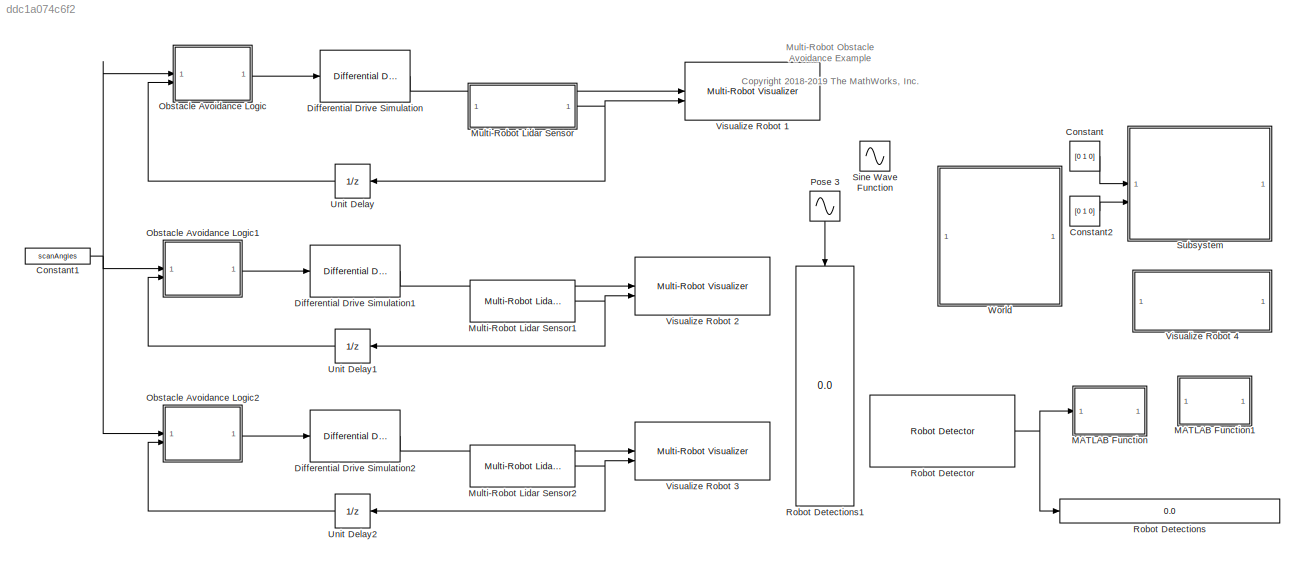
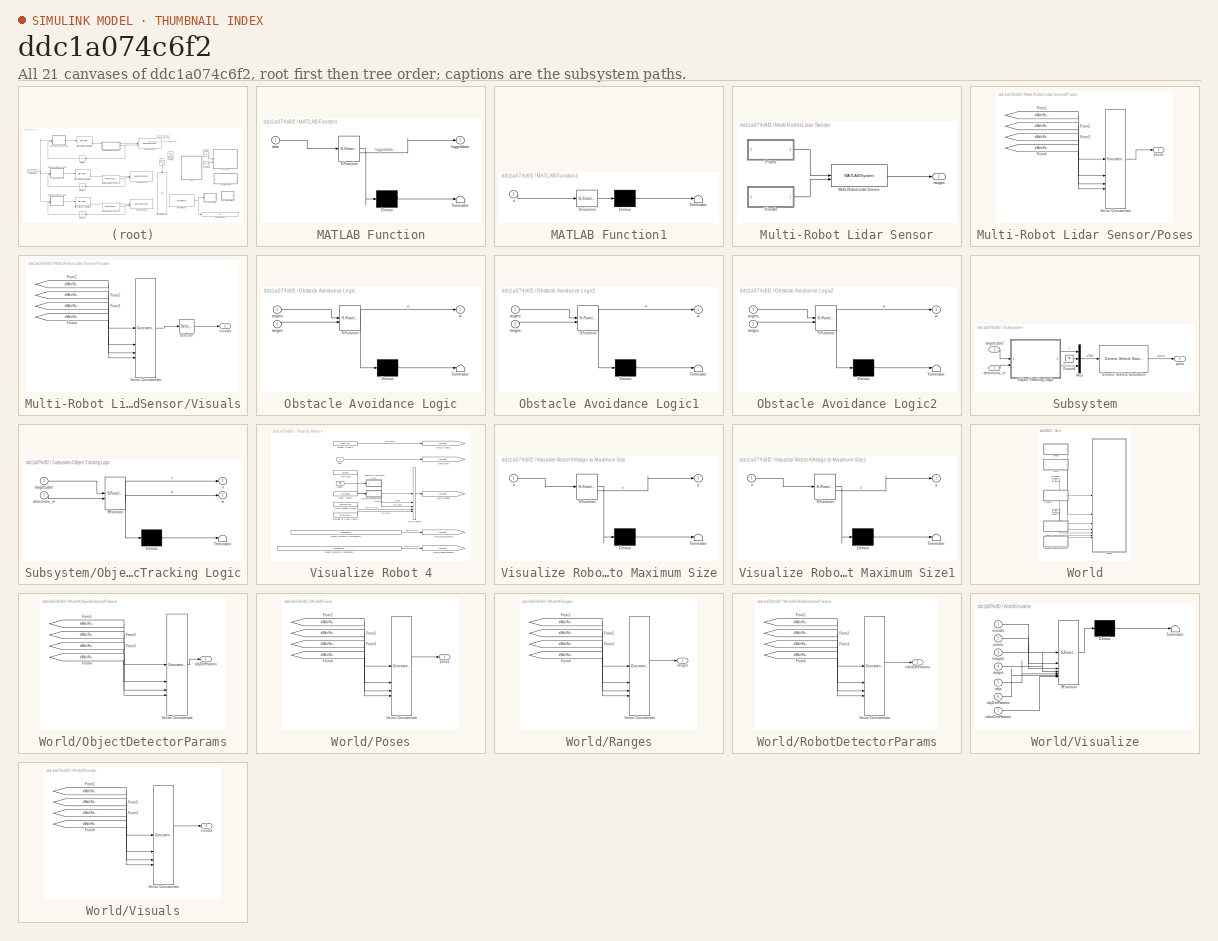
[diagram: thumbnail index - all 21 canvases of the model, root first then tree order]
MODEL slx_ddc1a074c6f2
KIND model
CONFIG AbsTol = auto
CONFIG EnableMultiTasking = off
CONFIG FixedStep = sampleTime
CONFIG MaxStep = auto
CONFIG MinStep = auto
CONFIG PreLoadFcn = % Simulation parameters\nload exampleMap\nsampleTime = 0.05;\n\n% Robot parameters\nwheelRadius = 0.025;\nrobotRadius = 0.35;\n\n% Lidar parameters\nsensorOffset = [0,0];\nscanAngles = linspace(-pi/2,pi/2,9)';\nmaxRange = 5;
CONFIG RelTol = 1e-3
CONFIG SampleTimeConstraint = Unconstrained
CONFIG SolverName = FixedStepAuto
CONFIG StartTime = 0.0
CONFIG StopTime = inf
BLOCK [Constant] Constant
  Commented = on
  Value = [0 1 0]
BLOCK [Constant] Constant1
  Value = scanAngles
BLOCK [Constant] Constant2
  Commented = on
  Value = [0 1 0]
BLOCK [Reference] Differential Drive Simulation  REF=mobileRoboticsLib/Kinematic Models/Differential Drive/Differential Drive Simulation
  SourceBlock = mobileRoboticsLib/Kinematic Models/Differential Drive/Differential Drive Simulation
  SourceProductName = Mobile Robotics Simulation Toolbox
  SourceType = Differential Drive Simulation
BLOCK [Reference] Differential Drive Simulation1  REF=mobileRoboticsLib/Kinematic Models/Differential Drive/Differential Drive Simulation
  SourceBlock = mobileRoboticsLib/Kinematic Models/Differential Drive/Differential Drive Simulation
  SourceProductName = Mobile Robotics Simulation Toolbox
  SourceType = Differential Drive Simulation
BLOCK [Reference] Differential Drive Simulation2  REF=mobileRoboticsLib/Kinematic Models/Differential Drive/Differential Drive Simulation
  SourceBlock = mobileRoboticsLib/Kinematic Models/Differential Drive/Differential Drive Simulation
  SourceProductName = Mobile Robotics Simulation Toolbox
  SourceType = Differential Drive Simulation
BLOCK [SubSystem] MATLAB Function
  ErrorFcn = Stateflow.Translate.translate
  PermitHierarchicalResolution = ExplicitOnly
  SFBlockType = MATLAB Function
  TreatAsAtomicUnit = on
BLOCK [Demux] MATLAB Function/ Demux 
  Outputs = 1
BLOCK [S-Function] MATLAB Function/ SFunction 
  EnableBusSupport = on
  FunctionName = sf_sfun
  PortCounts = [1 2]
  SFcnIsStateOwnerBlock = off
  SFunctionDeploymentMode = off
  Tag = Stateflow S-Function 4
BLOCK [Terminator] MATLAB Function/ Terminator 
BLOCK [Inport] MATLAB Function/data
BLOCK [Outport] MATLAB Function/loggeddata
BLOCK [SubSystem] MATLAB Function1
  ErrorFcn = Stateflow.Translate.translate
  PermitHierarchicalResolution = ExplicitOnly
  SFBlockType = MATLAB Function
  TreatAsAtomicUnit = on
BLOCK [Demux] MATLAB Function1/ Demux 
  Outputs = 1
BLOCK [S-Function] MATLAB Function1/ SFunction 
  EnableBusSupport = off
  FunctionName = sf_sfun
  PortCounts = [1 1]
  SFcnIsStateOwnerBlock = off
  SFunctionDeploymentMode = off
  Tag = Stateflow S-Function 5
BLOCK [Terminator] MATLAB Function1/ Terminator 
BLOCK [Inport] MATLAB Function1/u
BLOCK [SubSystem] Multi-Robot Lidar Sensor
  AncestorBlock = mobileRoboticsLib/Environments/Multi-Robot Lidar Sensor
BLOCK [MATLABSystem] Multi-Robot Lidar Sensor/Multi-Robot Lidar Sensor
  MaskDisplay = disp(['Multi-Robot' char(10) 'Lidar 1']);\nport_label('output',1,'ranges');
  MaskType = MultiRobotLidarSensor
  System = MultiRobotLidarSensor
  mapName = map
  maxRange = maxRange
  robotIdx = robotIdx
  robotRadii = -1
  scanAngles = scanAngles
  sensorOffset = sensorOffset
BLOCK [SubSystem] Multi-Robot Lidar Sensor/Poses
BLOCK [From] Multi-Robot Lidar Sensor/Poses/From1
  GotoTag = slMultiRobotEnv_Pose_1
  TagVisibility = global
BLOCK [From] Multi-Robot Lidar Sensor/Poses/From2
  GotoTag = slMultiRobotEnv_Pose_2
  TagVisibility = global
BLOCK [From] Multi-Robot Lidar Sensor/Poses/From3
  GotoTag = slMultiRobotEnv_Pose_3
  TagVisibility = global
BLOCK [From] Multi-Robot Lidar Sensor/Poses/From4
  GotoTag = slMultiRobotEnv_Pose_4
  TagVisibility = global
BLOCK [Concatenate] Multi-Robot Lidar Sensor/Poses/Vector Concatenate
  ConcatenateDimension = 2
  Mode = Multidimensional array
  NumInputs = 4
BLOCK [Outport] Multi-Robot Lidar Sensor/Poses/poses
BLOCK [SubSystem] Multi-Robot Lidar Sensor/Visuals
BLOCK [From] Multi-Robot Lidar Sensor/Visuals/From1
  GotoTag = slMultiRobotEnv_Visuals_1
  TagVisibility = global
BLOCK [From] Multi-Robot Lidar Sensor/Visuals/From2
  GotoTag = slMultiRobotEnv_Visuals_2
  TagVisibility = global
BLOCK [From] Multi-Robot Lidar Sensor/Visuals/From3
  GotoTag = slMultiRobotEnv_Visuals_3
  TagVisibility = global
BLOCK [From] Multi-Robot Lidar Sensor/Visuals/From4
  GotoTag = slMultiRobotEnv_Visuals_4
  TagVisibility = global
BLOCK [Selector] Multi-Robot Lidar Sensor/Visuals/Selector
  IndexOptions = Index vector (dialog),Select all
  Indices = 1,1
  InputPortWidth = 3
  NumberOfDimensions = 2
  OutputSizes = 1,1
BLOCK [Concatenate] Multi-Robot Lidar Sensor/Visuals/Vector Concatenate
  ConcatenateDimension = 2
  Mode = Multidimensional array
  NumInputs = 4
BLOCK [Outport] Multi-Robot Lidar Sensor/Visuals/visuals
BLOCK [Outport] Multi-Robot Lidar Sensor/ranges
  VectorParamsAs1DForOutWhenUnconnected = off
BLOCK [Reference] Multi-Robot Lidar Sensor1  REF=mobileRoboticsLib/Environments/Multi-Robot Lidar Sensor
  SourceBlock = mobileRoboticsLib/Environments/Multi-Robot Lidar Sensor
  SourceProductName = Mobile Robotics Simulation Toolbox
  SourceType = Multi-Robot Lidar Sensor
BLOCK [Reference] Multi-Robot Lidar Sensor2  REF=mobileRoboticsLib/Environments/Multi-Robot Lidar Sensor
  SourceBlock = mobileRoboticsLib/Environments/Multi-Robot Lidar Sensor
  SourceProductName = Mobile Robotics Simulation Toolbox
  SourceType = Multi-Robot Lidar Sensor
BLOCK [SubSystem] Obstacle Avoidance Logic
  ErrorFcn = Stateflow.Translate.translate
  PermitHierarchicalResolution = ExplicitOnly
  SFBlockType = Chart
  TreatAsAtomicUnit = on
BLOCK [Demux] Obstacle Avoidance Logic/ Demux 
  Outputs = 1
BLOCK [S-Function] Obstacle Avoidance Logic/ SFunction 
  EnableBusSupport = on
  FunctionName = sf_sfun
  PortCounts = [2 2]
  SFcnIsStateOwnerBlock = off
  SFunctionDeploymentMode = off
  Tag = Stateflow S-Function 3
BLOCK [Terminator] Obstacle Avoidance Logic/ Terminator 
BLOCK [Inport] Obstacle Avoidance Logic/angles
BLOCK [Inport] Obstacle Avoidance Logic/ranges
  Port = 2
BLOCK [Outport] Obstacle Avoidance Logic/w
  VectorParamsAs1DForOutWhenUnconnected = off
BLOCK [SubSystem] Obstacle Avoidance Logic1
  ErrorFcn = Stateflow.Translate.translate
  PermitHierarchicalResolution = ExplicitOnly
  SFBlockType = Chart
  TreatAsAtomicUnit = on
BLOCK [Demux] Obstacle Avoidance Logic1/ Demux 
  Outputs = 1
BLOCK [S-Function] Obstacle Avoidance Logic1/ SFunction 
  EnableBusSupport = on
  FunctionName = sf_sfun
  PortCounts = [2 2]
  SFcnIsStateOwnerBlock = off
  SFunctionDeploymentMode = off
  Tag = Stateflow S-Function 1
BLOCK [Terminator] Obstacle Avoidance Logic1/ Terminator 
BLOCK [Inport] Obstacle Avoidance Logic1/angles
BLOCK [Inport] Obstacle Avoidance Logic1/ranges
  Port = 2
BLOCK [Outport] Obstacle Avoidance Logic1/w
  VectorParamsAs1DForOutWhenUnconnected = off
BLOCK [SubSystem] Obstacle Avoidance Logic2
  ErrorFcn = Stateflow.Translate.translate
  PermitHierarchicalResolution = ExplicitOnly
  SFBlockType = Chart
  TreatAsAtomicUnit = on
BLOCK [Demux] Obstacle Avoidance Logic2/ Demux 
  Outputs = 1
BLOCK [S-Function] Obstacle Avoidance Logic2/ SFunction 
  EnableBusSupport = on
  FunctionName = sf_sfun
  PortCounts = [2 2]
  SFcnIsStateOwnerBlock = off
  SFunctionDeploymentMode = off
  Tag = Stateflow S-Function 2
BLOCK [Terminator] Obstacle Avoidance Logic2/ Terminator 
BLOCK [Inport] Obstacle Avoidance Logic2/angles
BLOCK [Inport] Obstacle Avoidance Logic2/ranges
  Port = 2
BLOCK [Outport] Obstacle Avoidance Logic2/w
  VectorParamsAs1DForOutWhenUnconnected = off
BLOCK [Sin] Pose 3
  Amplitude = [-2;0.5;pi/2]
  Bias = [7.75;3;0]
  NameLocation = left
  Offset = [0;50;25]
  Phase = [-pi/4;0;pi/3]
  SampleTime = sampleTime
  Samples = 160
  SineType = Sample based
BLOCK [Display] Robot Detections
  Decimation = 1
BLOCK [Display] Robot Detections1
  Decimation = 1
  NameLocation = left
BLOCK [Reference] Robot Detector  REF=mobileRoboticsLib/Environments/Robot Detector
  SourceBlock = mobileRoboticsLib/Environments/Robot Detector
  SourceProductName = Mobile Robotics Simulation Toolbox
  SourceType = Robot Detector
BLOCK [Sin] Sine Wave Function
  Amplitude = [detect_array(1);detect_array(2);detect_array(3)]
  Bias = [7.75;3;0]
  Commented = on
  Offset = [0;50;25]
  SampleTime = 0.05
  Samples = 160
  SineType = Sample based
BLOCK [SubSystem] Subsystem
  Commented = on
BLOCK [Reference] Subsystem/Generic Vehicle Simulation  REF=mobileRoboticsLib/Utilities/Generic Vehicle Simulation
  SourceBlock = mobileRoboticsLib/Utilities/Generic Vehicle Simulation
  SourceProductName = Mobile Robotics Simulation Toolbox
  SourceType = Generic Vehicle Simulation
BLOCK [Ground] Subsystem/Ground
BLOCK [Mux] Subsystem/Mux
  DisplayOption = bar
  Inputs = 3
BLOCK [SubSystem] Subsystem/Object Tracking Logic
  ErrorFcn = Stateflow.Translate.translate
  PermitHierarchicalResolution = ExplicitOnly
  SFBlockType = Chart
  TreatAsAtomicUnit = on
BLOCK [Demux] Subsystem/Object Tracking Logic/ Demux 
  Outputs = 1
BLOCK [S-Function] Subsystem/Object Tracking Logic/ SFunction 
  EnableBusSupport = on
  FunctionName = sf_sfun
  PortCounts = [2 3]
  SFcnIsStateOwnerBlock = off
  SFunctionDeploymentMode = off
  Tag = Stateflow S-Function 6
BLOCK [Terminator] Subsystem/Object Tracking Logic/ Terminator 
BLOCK [Inport] Subsystem/Object Tracking Logic/detections_in
  Port = 2
BLOCK [Inport] Subsystem/Object Tracking Logic/targetLabel
BLOCK [Outport] Subsystem/Object Tracking Logic/v
  VectorParamsAs1DForOutWhenUnconnected = off
BLOCK [Outport] Subsystem/Object Tracking Logic/w
  Port = 2
  VectorParamsAs1DForOutWhenUnconnected = off
BLOCK [Inport] Subsystem/detections_in
  Port = 2
BLOCK [Outport] Subsystem/pose
BLOCK [Inport] Subsystem/targetLabel
BLOCK [UnitDelay] Unit Delay
  HasFrameUpgradeWarning = on
  SampleTime = -1
BLOCK [UnitDelay] Unit Delay1
  HasFrameUpgradeWarning = on
  SampleTime = -1
BLOCK [UnitDelay] Unit Delay2
  HasFrameUpgradeWarning = on
  SampleTime = -1
BLOCK [Reference] Visualize Robot 1  REF=mobileRoboticsLib/Environments/Multi-Robot Visualizer
  SourceBlock = mobileRoboticsLib/Environments/Multi-Robot Visualizer
  SourceProductName = Mobile Robotics Simulation Toolbox
  SourceType = Multi-Robot Visualizer
BLOCK [Reference] Visualize Robot 2  REF=mobileRoboticsLib/Environments/Multi-Robot Visualizer
  SourceBlock = mobileRoboticsLib/Environments/Multi-Robot Visualizer
  SourceProductName = Mobile Robotics Simulation Toolbox
  SourceType = Multi-Robot Visualizer
BLOCK [Reference] Visualize Robot 3  REF=mobileRoboticsLib/Environments/Multi-Robot Visualizer
  SourceBlock = mobileRoboticsLib/Environments/Multi-Robot Visualizer
  SourceProductName = Mobile Robotics Simulation Toolbox
  SourceType = Multi-Robot Visualizer
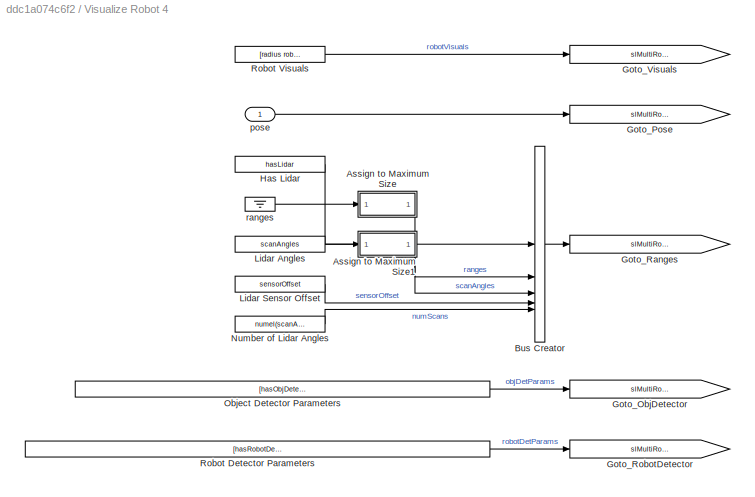
BLOCK [SubSystem] Visualize Robot 4
  AncestorBlock = mobileRoboticsLib/Environments/Multi-Robot Visualizer
BLOCK [SubSystem] Visualize Robot 4/Assign to Maximum Size
  ErrorFcn = Stateflow.Translate.translate
  PermitHierarchicalResolution = ExplicitOnly
  SFBlockType = MATLAB Function
  TreatAsAtomicUnit = on
BLOCK [Demux] Visualize Robot 4/Assign to Maximum Size/ Demux 
  Outputs = 1
BLOCK [S-Function] Visualize Robot 4/Assign to Maximum Size/ SFunction 
  EnableBusSupport = on
  FunctionName = sf_sfun
  Parameters = maxLength
  PortCounts = [1 2]
  SFcnIsStateOwnerBlock = off
  SFunctionDeploymentMode = off
  Tag = Stateflow S-Function 15
BLOCK [Terminator] Visualize Robot 4/Assign to Maximum Size/ Terminator 
BLOCK [Inport] Visualize Robot 4/Assign to Maximum Size/u
BLOCK [Outport] Visualize Robot 4/Assign to Maximum Size/y
BLOCK [SubSystem] Visualize Robot 4/Assign to Maximum Size1
  ErrorFcn = Stateflow.Translate.translate
  PermitHierarchicalResolution = ExplicitOnly
  SFBlockType = MATLAB Function
  TreatAsAtomicUnit = on
BLOCK [Demux] Visualize Robot 4/Assign to Maximum Size1/ Demux 
  Outputs = 1
BLOCK [S-Function] Visualize Robot 4/Assign to Maximum Size1/ SFunction 
  EnableBusSupport = on
  FunctionName = sf_sfun
  Parameters = maxLength
  PortCounts = [1 2]
  SFcnIsStateOwnerBlock = off
  SFunctionDeploymentMode = off
  Tag = Stateflow S-Function 16
BLOCK [Terminator] Visualize Robot 4/Assign to Maximum Size1/ Terminator 
BLOCK [Inport] Visualize Robot 4/Assign to Maximum Size1/u
BLOCK [Outport] Visualize Robot 4/Assign to Maximum Size1/y
BLOCK [BusCreator] Visualize Robot 4/Bus Creator
  DisplayOption = bar
  InheritFromInputs = off
  Inputs = 5
  NonVirtualBus = on
  OutDataTypeStr = Bus: slbus_MultiRobotRangeSensor
BLOCK [Goto] Visualize Robot 4/Goto_ObjDetector
  Commented = on
  GotoTag = slMultiRobotEnv_ObjDet_4
  TagVisibility = global
BLOCK [Goto] Visualize Robot 4/Goto_Pose
  GotoTag = slMultiRobotEnv_Pose_4
  TagVisibility = global
BLOCK [Goto] Visualize Robot 4/Goto_Ranges
  GotoTag = slMultiRobotEnv_Ranges_4
  TagVisibility = global
BLOCK [Goto] Visualize Robot 4/Goto_RobotDetector
  GotoTag = slMultiRobotEnv_RobotDet_4
  TagVisibility = global
BLOCK [Goto] Visualize Robot 4/Goto_Visuals
  GotoTag = slMultiRobotEnv_Visuals_4
  TagVisibility = global
BLOCK [Constant] Visualize Robot 4/Has Lidar
  OutDataTypeStr = boolean
  Value = hasLidar
BLOCK [Constant] Visualize Robot 4/Lidar Angles
  Value = scanAngles
BLOCK [Constant] Visualize Robot 4/Lidar Sensor Offset
  Value = sensorOffset
BLOCK [Constant] Visualize Robot 4/Number of Lidar Angles
  Value = numel(scanAngles)
BLOCK [Constant] Visualize Robot 4/Object Detector Parameters
  Commented = on
  Value = [hasObjDetector objDetectorOffset objDetectorAngle objDetectorFOV objDetectorMaxRange]
BLOCK [Constant] Visualize Robot 4/Robot Detector Parameters
  Value = [hasRobotDetector robotDetectorOffset robotDetectorAngle robotDetectorFOV robotDetectorMaxRange]
BLOCK [Constant] Visualize Robot 4/Robot Visuals
  Value = [radius robotColor]
BLOCK [Inport] Visualize Robot 4/pose
BLOCK [Ground] Visualize Robot 4/ranges
BLOCK [SubSystem] World
  AncestorBlock = mobileRoboticsLib/Environments/Multi-Robot Environment
  InitFcn = clear multiRobotVizWorld;
BLOCK [SubSystem] World/ObjectDetectorParams
BLOCK [From] World/ObjectDetectorParams/From1
  GotoTag = slMultiRobotEnv_ObjDet_1
  TagVisibility = global
BLOCK [From] World/ObjectDetectorParams/From2
  GotoTag = slMultiRobotEnv_ObjDet_2
  TagVisibility = global
BLOCK [From] World/ObjectDetectorParams/From3
  GotoTag = slMultiRobotEnv_ObjDet_3
  TagVisibility = global
BLOCK [From] World/ObjectDetectorParams/From4
  GotoTag = slMultiRobotEnv_ObjDet_4
BLOCK [Concatenate] World/ObjectDetectorParams/Vector Concatenate
  ConcatenateDimension = 2
  Mode = Multidimensional array
  NumInputs = 4
BLOCK [Outport] World/ObjectDetectorParams/objDetParams
BLOCK [SubSystem] World/Poses
BLOCK [From] World/Poses/From1
  GotoTag = slMultiRobotEnv_Pose_1
  TagVisibility = global
BLOCK [From] World/Poses/From2
  GotoTag = slMultiRobotEnv_Pose_2
  TagVisibility = global
BLOCK [From] World/Poses/From3
  GotoTag = slMultiRobotEnv_Pose_3
  TagVisibility = global
BLOCK [From] World/Poses/From4
  GotoTag = slMultiRobotEnv_Pose_4
  TagVisibility = global
BLOCK [Concatenate] World/Poses/Vector Concatenate
  ConcatenateDimension = 2
  Mode = Multidimensional array
  NumInputs = 4
BLOCK [Outport] World/Poses/poses
BLOCK [SubSystem] World/Ranges
BLOCK [From] World/Ranges/From1
  GotoTag = slMultiRobotEnv_Ranges_1
  TagVisibility = global
BLOCK [From] World/Ranges/From2
  GotoTag = slMultiRobotEnv_Ranges_2
  TagVisibility = global
BLOCK [From] World/Ranges/From3
  GotoTag = slMultiRobotEnv_Ranges_3
  TagVisibility = global
BLOCK [From] World/Ranges/From4
  GotoTag = slMultiRobotEnv_Ranges_4
  TagVisibility = global
BLOCK [Concatenate] World/Ranges/Vector Concatenate
  ConcatenateDimension = 2
  Mode = Multidimensional array
  NumInputs = 4
BLOCK [Outport] World/Ranges/ranges
BLOCK [SubSystem] World/RobotDetectorParams
BLOCK [From] World/RobotDetectorParams/From1
  GotoTag = slMultiRobotEnv_RobotDet_1
  TagVisibility = global
BLOCK [From] World/RobotDetectorParams/From2
  GotoTag = slMultiRobotEnv_RobotDet_2
  TagVisibility = global
BLOCK [From] World/RobotDetectorParams/From3
  GotoTag = slMultiRobotEnv_RobotDet_3
  TagVisibility = global
BLOCK [From] World/RobotDetectorParams/From4
  GotoTag = slMultiRobotEnv_RobotDet_4
  TagVisibility = global
BLOCK [Concatenate] World/RobotDetectorParams/Vector Concatenate
  ConcatenateDimension = 2
  Mode = Multidimensional array
  NumInputs = 4
BLOCK [Outport] World/RobotDetectorParams/robotDetParams
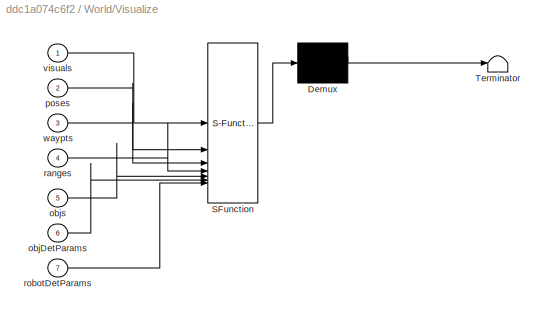
BLOCK [SubSystem] World/Visualize
  ErrorFcn = Stateflow.Translate.translate
  PermitHierarchicalResolution = ExplicitOnly
  SFBlockType = MATLAB Function
  TreatAsAtomicUnit = on
BLOCK [Demux] World/Visualize/ Demux 
  Outputs = 1
BLOCK [S-Function] World/Visualize/ SFunction 
  EnableBusSupport = on
  FunctionName = sf_sfun
  Parameters = numRobots,plotSensorLines,showRobotIds
  PortCounts = [7 1]
  SFcnIsStateOwnerBlock = off
  SFunctionDeploymentMode = off
  Tag = Stateflow S-Function 11
BLOCK [Terminator] World/Visualize/ Terminator 
BLOCK [Inport] World/Visualize/objDetParams
  Port = 6
BLOCK [Inport] World/Visualize/objs
  Port = 5
BLOCK [Inport] World/Visualize/poses
  Port = 2
BLOCK [Inport] World/Visualize/ranges
  Port = 4
BLOCK [Inport] World/Visualize/robotDetParams
  Port = 7
BLOCK [Inport] World/Visualize/visuals
BLOCK [Inport] World/Visualize/waypts
  Port = 3
BLOCK [SubSystem] World/Visuals
BLOCK [From] World/Visuals/From1
  GotoTag = slMultiRobotEnv_Visuals_1
  TagVisibility = global
BLOCK [From] World/Visuals/From2
  GotoTag = slMultiRobotEnv_Visuals_2
  TagVisibility = global
BLOCK [From] World/Visuals/From3
  GotoTag = slMultiRobotEnv_Visuals_3
  TagVisibility = global
BLOCK [From] World/Visuals/From4
  GotoTag = slMultiRobotEnv_Visuals_4
  TagVisibility = global
BLOCK [Concatenate] World/Visuals/Vector Concatenate
  ConcatenateDimension = 2
  Mode = Multidimensional array
  NumInputs = 4
BLOCK [Outport] World/Visuals/visuals
BLOCK [Ground] World/objects
BLOCK [Ground] World/waypoints
ANNOTATION (root): Multi-Robot Obstacle Avoidance Example <copyright redacted>
NET Constant1:1 -> Obstacle Avoidance Logic1:1, Obstacle Avoidance Logic2:1, Obstacle Avoidance Logic:1
LINE Constant2:1 -> Subsystem:2
LINE Constant:1 -> Subsystem:1
LINE Differential Drive Simulation1:1 -> Visualize Robot 2:1
LINE Differential Drive Simulation2:1 -> Visualize Robot 3:1
LINE Differential Drive Simulation:1 -> Visualize Robot 1:1
NET Multi-Robot Lidar Sensor1:1 -> Unit Delay1:1, Visualize Robot 2:2
NET Multi-Robot Lidar Sensor2:1 -> Unit Delay2:1, Visualize Robot 3:2
NET Multi-Robot Lidar Sensor:1 -> Unit Delay:1, Visualize Robot 1:2
LINE Obstacle Avoidance Logic1:1 -> Differential Drive Simulation1:1
LINE Obstacle Avoidance Logic2:1 -> Differential Drive Simulation2:1
LINE Obstacle Avoidance Logic:1 -> Differential Drive Simulation:1
LINE Pose 3:1 -> Robot Detections1:1
NET Robot Detector:1 -> MATLAB Function:1, Robot Detections:1
LINE Subsystem/Generic Vehicle Simulation:1 -> Subsystem/pose:1
LINE Subsystem/Ground:1 -> Subsystem/Mux:2
LINE Subsystem/Mux:1 -> Subsystem/Generic Vehicle Simulation:1
LINE Subsystem/Object Tracking Logic:1 -> Subsystem/Mux:1
LINE Subsystem/Object Tracking Logic:2 -> Subsystem/Mux:3
LINE Subsystem/detections_in:1 -> Subsystem/Object Tracking Logic:2
LINE Subsystem/targetLabel:1 -> Subsystem/Object Tracking Logic:1
LINE Unit Delay1:1 -> Obstacle Avoidance Logic1:2
LINE Unit Delay2:1 -> Obstacle Avoidance Logic2:2
LINE Unit Delay:1 -> Obstacle Avoidance Logic:2
note: NET lines group one-source signal fan-out (src -> all destinations, sorted); 1:1 wires keep LINE
CHART Obstacle Avoidance 
Logic2 states=5 transitions=9
  STATE_LABEL 'MainState\nen,du:\nvalidIdx = ~isnan(ranges);\nvalidRanges = ranges(validIdx);\nvalidAngles = angles(validIdx);'
  STATE_LABEL 'Turn\nen,du:\navgAngle = mean(validAngles./validRanges);'
  STATE_LABEL 'Left\nen, du:\nw = [0;12.5];'
  STATE_LABEL 'Right\nen, du:\nw = [12.5;0];'
  STATE_LABEL '[avgAngle < 0]'
  STATE_LABEL '[after(1,sec) && ...\navgAngle > 0]'
  STATE_LABEL '[after(1,sec) && ...\navgAngle < 0]'
  STATE_LABEL 'GoStraight\nen:\nw = [25; 25];'
  STATE_LABEL '[any(validRanges<=1)]'
  STATE_LABEL '[all(validRanges>1)]'
  STATE_LABEL 'Turn\nen,du:\navgAngle = mean(validAngles./validRanges);'
  STATE_LABEL 'Left\nen, du:\nw = [0;12.5];'
  STATE_LABEL 'Right\nen, du:\nw = [12.5;0];'
  STATE_LABEL '[avgAngle < 0]'
  STATE_LABEL '[after(1,sec) && ...\navgAngle > 0]'
  STATE_LABEL '[after(1,sec) && ...\navgAngle < 0]'
  STATE_LABEL 'Left\nen, du:\nw = [0;12.5];'
  STATE_LABEL 'Right\nen, du:\nw = [12.5;0];'
  STATE_LABEL 'GoStraight\nen:\nw = [25; 25];'
CHART Obstacle Avoidance 
Logic states=5 transitions=9
  STATE_LABEL 'MainState\nen,du:\nvalidIdx = ~isnan(ranges);\nvalidRanges = ranges(validIdx);\nvalidAngles = angles(validIdx);'
  STATE_LABEL 'Turn\nen,du:\navgAngle = mean(validAngles./validRanges);'
  STATE_LABEL 'Left\nen, du:\nw = [0;12.5];'
  STATE_LABEL 'Right\nen, du:\nw = [12.5;0];'
  STATE_LABEL '[avgAngle < 0]'
  STATE_LABEL '[after(1,sec) && ...\navgAngle > 0]'
  STATE_LABEL '[after(1,sec) && ...\navgAngle < 0]'
  STATE_LABEL 'GoStraight\nen:\nw = [25; 25];'
  STATE_LABEL '[any(validRanges<=1)]'
  STATE_LABEL '[all(validRanges>1)]'
  STATE_LABEL 'Turn\nen,du:\navgAngle = mean(validAngles./validRanges);'
  STATE_LABEL 'Left\nen, du:\nw = [0;12.5];'
  STATE_LABEL 'Right\nen, du:\nw = [12.5;0];'
  STATE_LABEL '[avgAngle < 0]'
  STATE_LABEL '[after(1,sec) && ...\navgAngle > 0]'
  STATE_LABEL '[after(1,sec) && ...\navgAngle < 0]'
  STATE_LABEL 'Left\nen, du:\nw = [0;12.5];'
  STATE_LABEL 'Right\nen, du:\nw = [12.5;0];'
  STATE_LABEL 'GoStraight\nen:\nw = [25; 25];'
CHART MATLAB Function states=1 transitions=1
  STATE_LABEL 'eML_blk_kernel()'
  STATE_LABEL "SCRIPT:\nfunction loggeddata = logDataToExcel(data)\n% Appends variable-size data to an Excel file\npersistent loggedData\n\n% Initialize persistent variable on the first call\nif isempty(loggedData)\n    loggedData = {};\nend\n\n% Append current data\nloggedData{end+1} = data;\n\n% Save to Excel after simulation\nassignin('base', 'loggedData', loggedData); % Save loggedData to base workspace\nloggeddata = logge...<+11ch>"
CHART MATLAB Function1 states=1 transitions=1
  STATE_LABEL 'eML_blk_kernel()'
  STATE_LABEL 'SCRIPT:\nfunction fcn(u)\n% Assume the variable loggedData contains the data logged from Simulink\n\n% Example loggedData structure:\n% loggedData is a cell array where each cell contains a 3-element vector\n% Each row represents a time step.\n\n% Initialize a matrix or cell array for storing data\nallData = [];\n\n% Loop through each time step\nfor i = 1:length(u)\n    % Extract the current data (assumed to b...<+648ch>'
CHART Subsystem/Object Tracking Logic states=3 transitions=14
  STATE_LABEL 'TrackObject\nentry, during:\n[range,angle,valid] = findValidObject(targetLabel);\nif valid\n    count = 0;\nelse\n    count = count + 1;\nend\n'
  STATE_LABEL '% Set angular speed if\n% angle outside deadband\n[abs(angle) > pi/24]'
  STATE_LABEL '{w = 0;}'
  STATE_LABEL '% Proportional \n% control \n{w = 1.5*angle;}'
  STATE_LABEL '% Go forward if object is far\n[range > 1]'
  STATE_LABEL '{v = 0;}'
  STATE_LABEL '{v = 0.5;}'
  STATE_LABEL 'SeekObject\nentry:\nv = 0;\nw = 1;'
  STATE_LABEL '[dist,ang,flag] = findValidObject(label)'
  STATE_LABEL 'SCRIPT:\nfunction [dist,ang,flag] = findValidObject(label)\n% Finds the distance (dist) and angle (ang) of the nearest valid\n% object detected. If an object is found, the (flag) output is true.\n\n% Initialize\nflag = false;\ndist = 0;\nang = 0;\n\nif ~isempty(detections_in)\n    % Loop through all detections\n    for idx = 1:size(detections_in,1)\n        % If a detection matching the target label is found, ...<+245ch>'
CHART World/Visualize states=1 transitions=1
  STATE_LABEL 'eML_blk_kernel()'
  STATE_LABEL "SCRIPT:\nfunction visualizeWaypointsAndObjects(visuals,poses,waypts,numRobots,ranges,objs, ...\n                                      objDetParams,robotDetParams,plotSensorLines, showRobotIds)\n\n    coder.extrinsic('internal.multiRobotVizWorld')\n    internal.multiRobotVizWorld(numRobots,visuals,poses,waypts,ranges,objs, ... \n                                objDetParams,robotDetParams,showRobotIds,plo...<+19ch>"
CHART Visualize Robot 4/Assign to Maximum Size states=1 transitions=1
  STATE_LABEL 'eML_blk_kernel()'
  STATE_LABEL 'SCRIPT:\nfunction y = assign2max(u,maxLength)\n\ny = zeros(maxLength,1);\nnumElems = min(maxLength,size(u,1));\ny(1:numElems) = u(1:numElems);\n'
CHART Visualize Robot 4/Assign to Maximum Size1 states=1 transitions=1
  STATE_LABEL 'eML_blk_kernel()'
  STATE_LABEL 'SCRIPT:\nfunction y = assign2max(u,maxLength)\n\ny = zeros(maxLength,1);\nnumElems = min(maxLength,size(u,1));\ny(1:numElems) = u(1:numElems);\n'
CHART Obstacle Avoidance 
Logic1 states=5 transitions=9
  STATE_LABEL 'MainState\nen,du:\nvalidIdx = ~isnan(ranges);\nvalidRanges = ranges(validIdx);\nvalidAngles = angles(validIdx);'
  STATE_LABEL 'Turn\nen,du:\navgAngle = mean(validAngles./validRanges);'
  STATE_LABEL 'Left\nen, du:\nw = [0;12.5];'
  STATE_LABEL 'Right\nen, du:\nw = [12.5;0];'
  STATE_LABEL '[avgAngle < 0]'
  STATE_LABEL '[after(1,sec) && ...\navgAngle > 0]'
  STATE_LABEL '[after(1,sec) && ...\navgAngle < 0]'
  STATE_LABEL 'GoStraight\nen:\nw = [25; 25];'
  STATE_LABEL '[any(validRanges<=1)]'
  STATE_LABEL '[all(validRanges>1)]'
  STATE_LABEL 'Turn\nen,du:\navgAngle = mean(validAngles./validRanges);'
  STATE_LABEL 'Left\nen, du:\nw = [0;12.5];'
  STATE_LABEL 'Right\nen, du:\nw = [12.5;0];'
  STATE_LABEL '[avgAngle < 0]'
  STATE_LABEL '[after(1,sec) && ...\navgAngle > 0]'
  STATE_LABEL '[after(1,sec) && ...\navgAngle < 0]'
  STATE_LABEL 'Left\nen, du:\nw = [0;12.5];'
  STATE_LABEL 'Right\nen, du:\nw = [12.5;0];'
  STATE_LABEL 'GoStraight\nen:\nw = [25; 25];'
CHART  states=0 transitions=0
CHART  states=0 transitions=0
CHART  states=0 transitions=0
CHART  states=0 transitions=0
CHART  states=0 transitions=0
CHART  states=0 transitions=0
CHART  states=0 transitions=0
CHART  states=0 transitions=0
CHART  states=0 transitions=0
